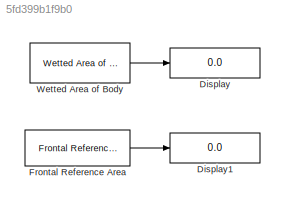
MODEL slx_5fd399b1f9b0
KIND model
BLOCK [Display] Display
  Decimation = 1
  Ports = [1]
BLOCK [Display] Display1
  Decimation = 1
  Ports = [1]
BLOCK [Reference] Frontal Reference Area  REF=rocket_drag_library/Frontal Reference Area  (lib defined in slx_51275aa4cfd2)
  Ports = [0, 1]
  SourceBlock = rocket_drag_library/Frontal Reference Area
  SourceType = SubSystem
BLOCK [Reference] Wetted Area of Body  REF=rocket_drag_library/Wetted Area of Body  (lib defined in slx_51275aa4cfd2)
  Ports = [0, 1]
  SourceBlock = rocket_drag_library/Wetted Area of Body
  SourceType = SubSystem
LINE Frontal Reference Area:1 -> Display1:1
LINE Wetted Area of Body:1 -> Display:1
